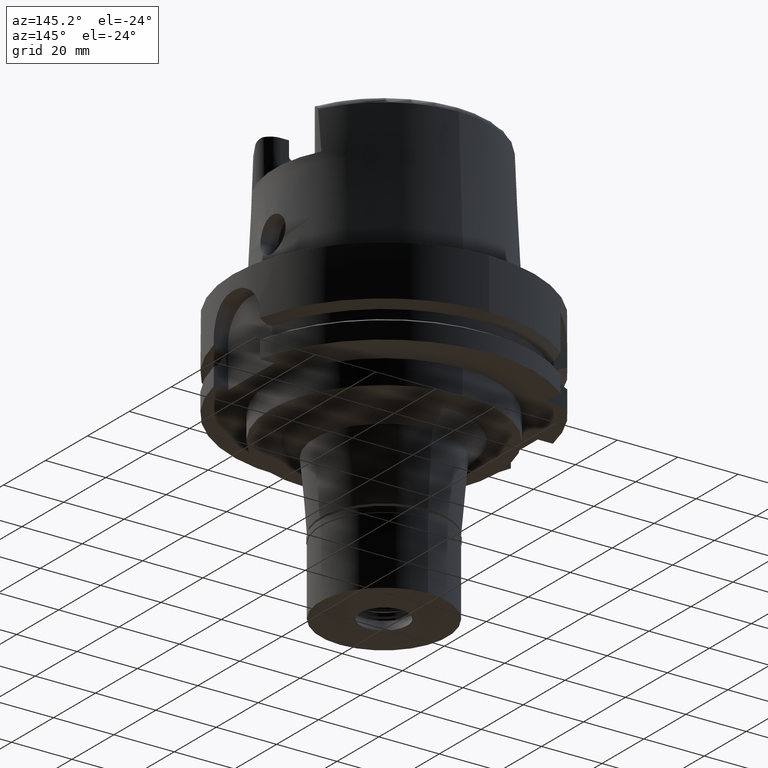
[diagram: clean part render]
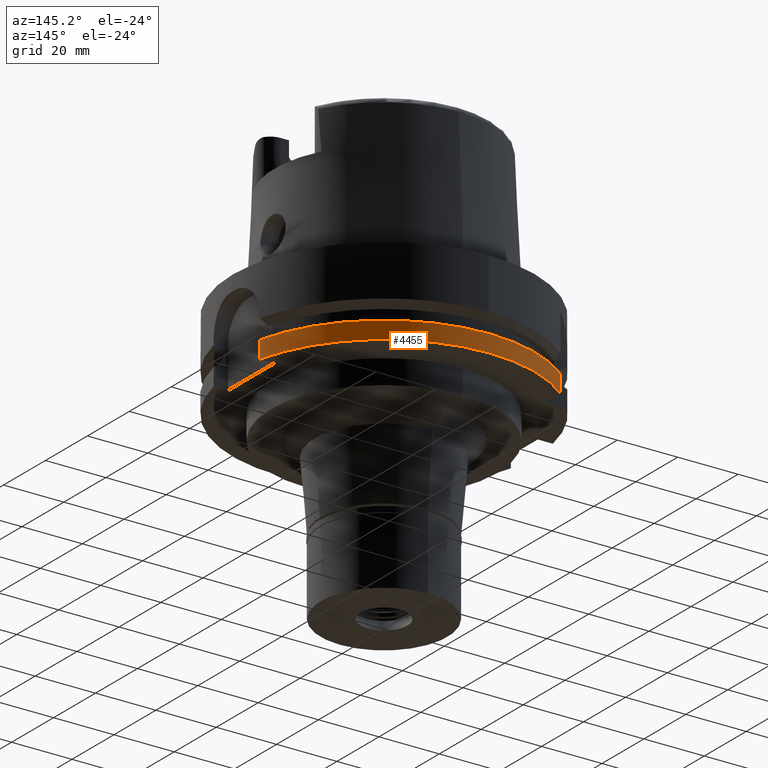
[diagram: same view with one face highlighted and labeled with its STEP entity id]
A machine part, auxiliary view. The second image highlights one B-rep face of the part: STEP entity #4455.
In plain terms, the highlighted cylindrical surface (partial cylindrical patch) has radius 50 mm, axis along (0, 0, 1).
Its self-contained STEP definition (entity closure, byte-faithful):
#291 = CARTESIAN_POINT ( 'NONE',  ( -31.50000355985999789, 38.82975374283000036, -23.24760820811999906 ) ) ;
#681 = CARTESIAN_POINT ( 'NONE',  ( 0.0000000000000000000, 0.0000000000000000000, -29.00000000000000000 ) ) ;
#713 = EDGE_CURVE ( 'NONE', #2887, #5098, #4527, .T. ) ;
#789 = VECTOR ( 'NONE', #2990, 1000.000000000000000 ) ;
#846 = EDGE_CURVE ( 'NONE', #3119, #4816, #5451, .T. ) ;
#1160 = AXIS2_PLACEMENT_3D ( 'NONE', #681, #2399, #1470 ) ;
#1208 = CARTESIAN_POINT ( 'NONE',  ( 48.77499359303000404, 11.00000000000000000, -29.00000000000000000 ) ) ;
#1254 = ORIENTED_EDGE ( 'NONE', *, *, #713, .T. ) ;
#1470 = DIRECTION ( 'NONE',  ( 0.0000000000000000000, 1.000000000000000000, 0.0000000000000000000 ) ) ;
#1687 = AXIS2_PLACEMENT_3D ( 'NONE', #5076, #5038, #5473 ) ;
#1829 = CARTESIAN_POINT ( 'NONE',  ( -31.50000000000000000, 38.82975663071000128, -29.00000000000000000 ) ) ;
#2129 = AXIS2_PLACEMENT_3D ( 'NONE', #4517, #4031, #3173 ) ;
#2147 = CARTESIAN_POINT ( 'NONE',  ( 48.77499359303000404, 11.00000000000000000, -23.24759526419000011 ) ) ;
#2308 = FACE_OUTER_BOUND ( 'NONE', #3381, .T. ) ;
#2399 = DIRECTION ( 'NONE',  ( 0.0000000000000000000, 0.0000000000000000000, 1.000000000000000000 ) ) ;
#2887 = VERTEX_POINT ( 'NONE', #291 ) ;
#2990 = DIRECTION ( 'NONE',  ( 6.188494047474892859E-07, 5.020316378013912240E-07, -0.9999999999996824762 ) ) ;
#3119 = VERTEX_POINT ( 'NONE', #1208 ) ;
#3173 = DIRECTION ( 'NONE',  ( 0.0000000000000000000, 1.000000000000000000, 0.0000000000000000000 ) ) ;
#3321 = ORIENTED_EDGE ( 'NONE', *, *, #4720, .F. ) ;
#3381 = EDGE_LOOP ( 'NONE', ( #1254, #3717, #4737, #3321 ) ) ;
#3717 = ORIENTED_EDGE ( 'NONE', *, *, #4996, .F. ) ;
#3799 = CARTESIAN_POINT ( 'NONE',  ( -31.50000355985999789, 38.82975374283000036, -23.24760820811999906 ) ) ;
#4031 = DIRECTION ( 'NONE',  ( 0.0000000000000000000, 0.0000000000000000000, 1.000000000000000000 ) ) ;
#4150 = VECTOR ( 'NONE', #5479, 1000.000000000000000 ) ;
#4455 = ADVANCED_FACE ( 'NONE', ( #2308 ), #4977, .T. ) ;
#4517 = CARTESIAN_POINT ( 'NONE',  ( 0.0000000000000000000, 0.0000000000000000000, -89.12500000000000000 ) ) ;
#4527 = CIRCLE ( 'NONE', #1687, 50.00000000000000711 ) ;
#4625 = LINE ( 'NONE', #5615, #4150 ) ;
#4720 = EDGE_CURVE ( 'NONE', #2887, #4816, #5539, .T. ) ;
#4737 = ORIENTED_EDGE ( 'NONE', *, *, #846, .T. ) ;
#4816 = VERTEX_POINT ( 'NONE', #1829 ) ;
#4977 = CYLINDRICAL_SURFACE ( 'NONE', #2129, 50.00000000000000000 ) ;
#4996 = EDGE_CURVE ( 'NONE', #3119, #5098, #4625, .T. ) ;
#5038 = DIRECTION ( 'NONE',  ( 0.0000000000000000000, 0.0000000000000000000, -1.000000000000000000 ) ) ;
#5076 = CARTESIAN_POINT ( 'NONE',  ( 0.0000000000000000000, 0.0000000000000000000, -23.24759526419000011 ) ) ;
#5098 = VERTEX_POINT ( 'NONE', #2147 ) ;
#5451 = CIRCLE ( 'NONE', #1160, 50.00000000000000000 ) ;
#5473 = DIRECTION ( 'NONE',  ( -0.6299999999999789102, 0.7765951326141738997, 0.0000000000000000000 ) ) ;
#5479 = DIRECTION ( 'NONE',  ( -8.399427413532000465E-14, -2.068976605539000027E-14, 1.000000000000000000 ) ) ;
#5539 = LINE ( 'NONE', #3799, #789 ) ;
#5615 = CARTESIAN_POINT ( 'NONE',  ( 48.77499359303000404, 11.00000000000000000, -29.00000000000000000 ) ) ;